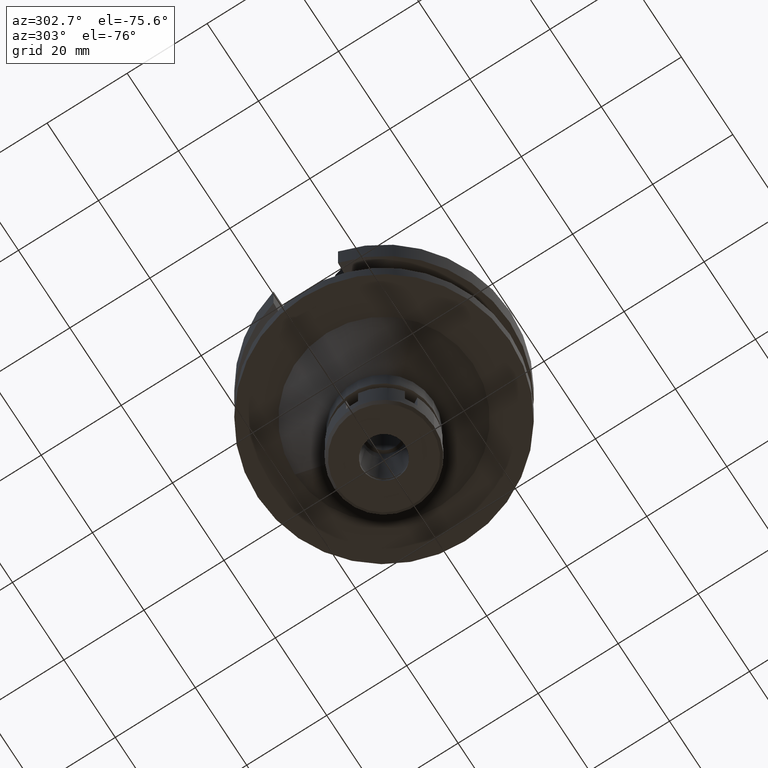
[diagram: clean part render]
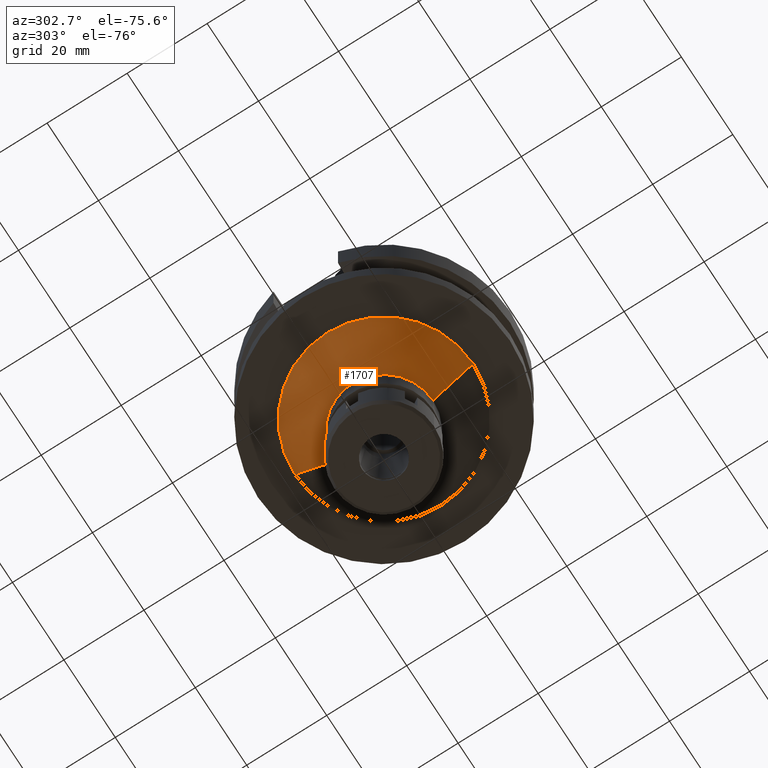
[diagram: same view with one face highlighted and labeled with its STEP entity id]
A machine part, auxiliary view. The second image highlights one B-rep face of the part: STEP entity #1707.
In plain terms, the highlighted conical surface has half-angle 45 deg.
Its self-contained STEP definition (entity closure, byte-faithful):
#59 = DIRECTION ( 'NONE',  ( 0.0000000000000000000, -1.000000000000000000, 0.0000000000000000000 ) ) ;
#73 = EDGE_CURVE ( 'NONE', #986, #3538, #472, .T. ) ;
#88 = CARTESIAN_POINT ( 'NONE',  ( 0.0000000000000000000, -22.25000000000000000, -27.00000000000000000 ) ) ;
#472 = LINE ( 'NONE', #731, #609 ) ;
#512 = EDGE_CURVE ( 'NONE', #751, #986, #729, .T. ) ;
#609 = VECTOR ( 'NONE', #1836, 1000.000000000000114 ) ;
#634 = VERTEX_POINT ( 'NONE', #3025 ) ;
#729 = CIRCLE ( 'NONE', #2750, 22.25000000000000000 ) ;
#731 = CARTESIAN_POINT ( 'NONE',  ( 0.0000000000000000000, 22.25000000000000000, -27.00000000000000000 ) ) ;
#751 = VERTEX_POINT ( 'NONE', #88 ) ;
#896 = DIRECTION ( 'NONE',  ( 0.0000000000000000000, 0.0000000000000000000, -1.000000000000000000 ) ) ;
#932 = DIRECTION ( 'NONE',  ( 0.0000000000000000000, 0.0000000000000000000, 1.000000000000000000 ) ) ;
#938 = ORIENTED_EDGE ( 'NONE', *, *, #1270, .F. ) ;
#986 = VERTEX_POINT ( 'NONE', #1224 ) ;
#1099 = DIRECTION ( 'NONE',  ( 0.0000000000000000000, 0.0000000000000000000, -1.000000000000000000 ) ) ;
#1195 = LINE ( 'NONE', #2855, #2146 ) ;
#1224 = CARTESIAN_POINT ( 'NONE',  ( 0.0000000000000000000, 22.25000000000000000, -27.00000000000000000 ) ) ;
#1270 = EDGE_CURVE ( 'NONE', #634, #3538, #1366, .T. ) ;
#1366 = CIRCLE ( 'NONE', #3425, 12.25000000000000000 ) ;
#1446 = EDGE_CURVE ( 'NONE', #751, #634, #1195, .T. ) ;
#1534 = ORIENTED_EDGE ( 'NONE', *, *, #512, .T. ) ;
#1542 = EDGE_LOOP ( 'NONE', ( #938, #2600, #1534, #2373 ) ) ;
#1593 = DIRECTION ( 'NONE',  ( 0.0000000000000000000, -1.000000000000000000, 0.0000000000000000000 ) ) ;
#1646 = CARTESIAN_POINT ( 'NONE',  ( 0.0000000000000000000, 0.0000000000000000000, -27.00000000000000000 ) ) ;
#1707 = ADVANCED_FACE ( 'NONE', ( #2791 ), #3438, .T. ) ;
#1836 = DIRECTION ( 'NONE',  ( 0.0000000000000000000, -0.7071067811865474617, -0.7071067811865474617 ) ) ;
#2079 = DIRECTION ( 'NONE',  ( 0.0000000000000000000, 0.7071067811865474617, -0.7071067811865474617 ) ) ;
#2146 = VECTOR ( 'NONE', #2079, 1000.000000000000114 ) ;
#2373 = ORIENTED_EDGE ( 'NONE', *, *, #73, .T. ) ;
#2600 = ORIENTED_EDGE ( 'NONE', *, *, #1446, .F. ) ;
#2750 = AXIS2_PLACEMENT_3D ( 'NONE', #1646, #1099, #1593 ) ;
#2791 = FACE_OUTER_BOUND ( 'NONE', #1542, .T. ) ;
#2849 = DIRECTION ( 'NONE',  ( 0.0000000000000000000, 1.000000000000000000, 0.0000000000000000000 ) ) ;
#2855 = CARTESIAN_POINT ( 'NONE',  ( 0.0000000000000000000, -22.25000000000000000, -27.00000000000000000 ) ) ;
#3025 = CARTESIAN_POINT ( 'NONE',  ( 0.0000000000000000000, -12.25000000000000000, -37.00000000000000000 ) ) ;
#3141 = CARTESIAN_POINT ( 'NONE',  ( 0.0000000000000000000, 0.0000000000000000000, -32.00000000000000000 ) ) ;
#3235 = CARTESIAN_POINT ( 'NONE',  ( 0.0000000000000000000, 12.25000000000000000, -37.00000000000000000 ) ) ;
#3262 = AXIS2_PLACEMENT_3D ( 'NONE', #3141, #932, #2849 ) ;
#3311 = CARTESIAN_POINT ( 'NONE',  ( 0.0000000000000000000, 0.0000000000000000000, -37.00000000000000000 ) ) ;
#3425 = AXIS2_PLACEMENT_3D ( 'NONE', #3311, #896, #59 ) ;
#3438 = CONICAL_SURFACE ( 'NONE', #3262, 17.25000000000000000, 0.7853981633972997312 ) ;
#3538 = VERTEX_POINT ( 'NONE', #3235 ) ;